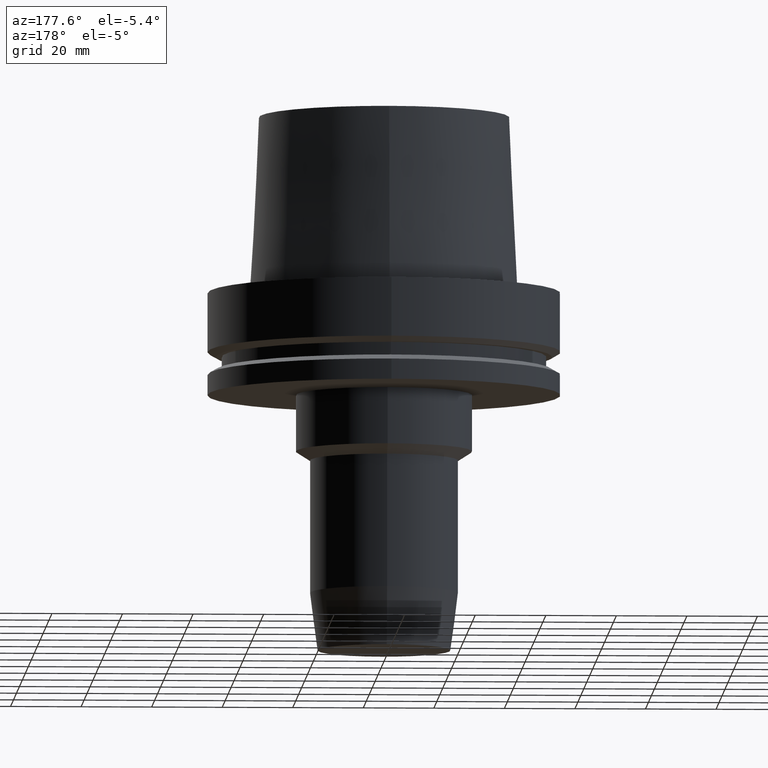
[diagram: clean part render]
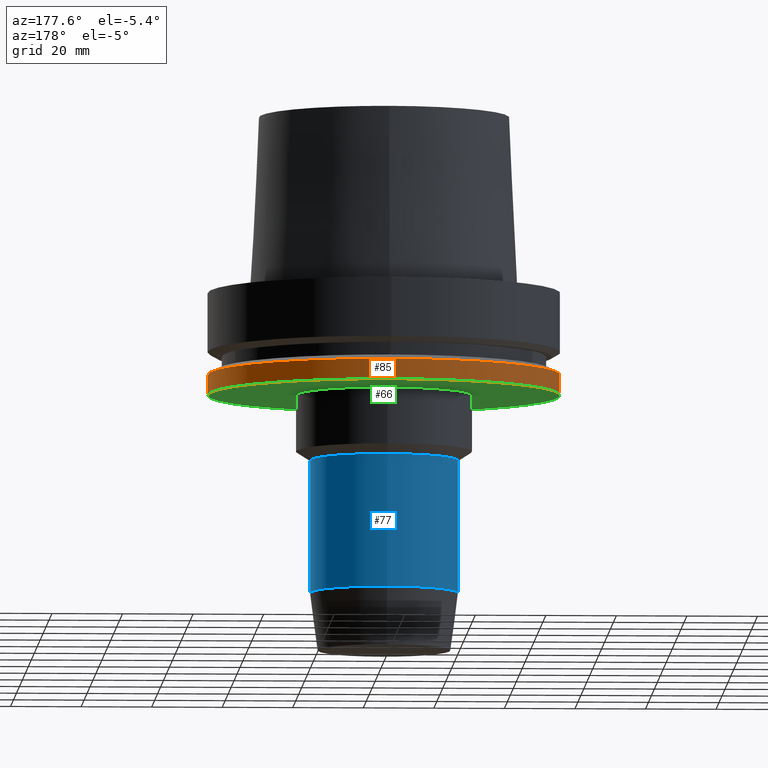
[diagram: same view with three faces highlighted in distinct colors, each labeled with its STEP entity id]
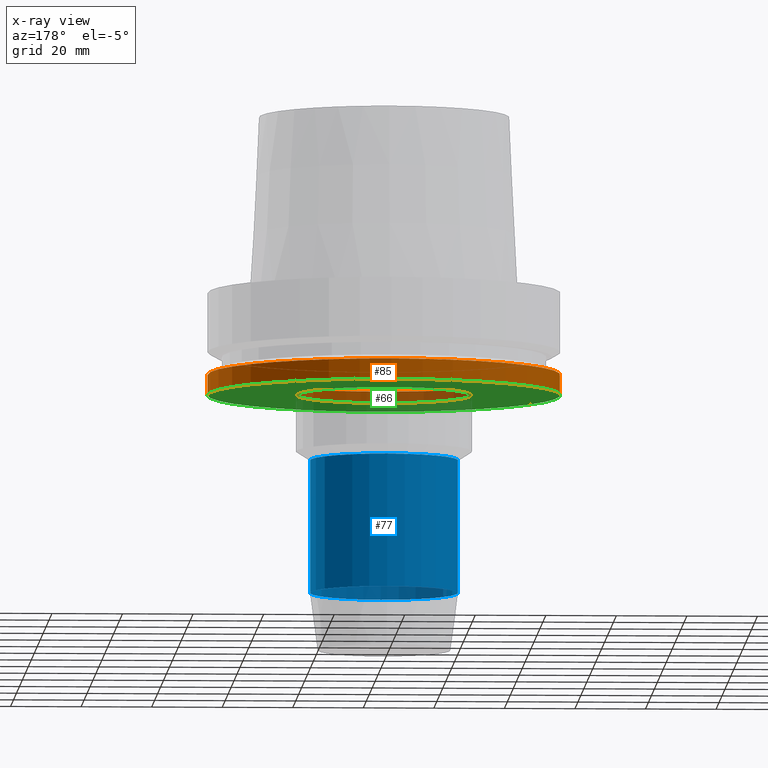
[diagram: x-ray of the same camera — body ghosted, the three highlighted faces saturated]
A machine part, auxiliary view with three faces highlighted in distinct colors.
The next image is the same camera in x-ray (body ghosted, the three faces saturated) — at least one of them is partly hidden behind the body in this view.
Their STEP definitions:

[orange] entity #85 — the highlighted cylindrical surface (bore or boss wall) has radius 50 mm, axis along (0, 0, -1).
#79=EDGE_CURVE('Unnamed[1]',#189,#189,#190,.T.);
#85=ADVANCED_FACE('Unnamed[1]',(#198,#199),#200,.T.);
#121=EDGE_CURVE('Unnamed[1]',#255,#255,#256,.T.);
#189=VERTEX_POINT('',#329);
#190=CIRCLE('',#330,50.0);
#198=FACE_BOUND('',#340,.T.);
#199=FACE_BOUND('',#341,.T.);
#200=CYLINDRICAL_SURFACE('',#342,50.0);
#255=VERTEX_POINT('',#412);
#256=CIRCLE('',#413,50.0);
#329=CARTESIAN_POINT('',(1.42350465615161E-015,50.0,-23.24759526));
#330=AXIS2_PLACEMENT_3D('',#482,#483,#484);
#340=EDGE_LOOP('',(#492));
#341=EDGE_LOOP('',(#493));
#342=AXIS2_PLACEMENT_3D('',#494,#495,#496);
#412=CARTESIAN_POINT('',(1.77573785876366E-015,50.0,-29.0));
#413=AXIS2_PLACEMENT_3D('',#556,#557,#558);
#482=CARTESIAN_POINT('',(1.42350465615161E-015,2.84700931230322E-015,-23.24759526));
#483=DIRECTION('',(6.12323399573677E-017,1.22464679914735E-016,-1.0));
#484=DIRECTION('',(-1.23259516440783E-032,1.0,1.22464679914735E-016));
#492=ORIENTED_EDGE('',*,*,#121,.F.);
#493=ORIENTED_EDGE('',*,*,#79,.T.);
#494=CARTESIAN_POINT('',(1.59962125745764E-015,3.19924251491527E-015,-26.12379763));
#495=DIRECTION('',(6.12323399573677E-017,1.22464679914735E-016,-1.0));
#496=DIRECTION('',(-1.23259516440783E-032,1.0,1.22464679914735E-016));
#556=CARTESIAN_POINT('',(1.77573785876366E-015,3.55147571752733E-015,-29.0));
#557=DIRECTION('',(6.12323399573677E-017,1.22464679914735E-016,-1.0));
#558=DIRECTION('',(-1.23259516440783E-032,1.0,1.22464679914735E-016));

[blue] entity #77 — the highlighted cylindrical surface (bore or boss wall) has radius 21 mm, axis along (0, 0, -1).
#77=ADVANCED_FACE('Unnamed[1]',(#185,#186),#187,.T.);
#89=EDGE_CURVE('Unnamed[1]',#205,#205,#206,.T.);
#128=EDGE_CURVE('Unnamed[1]',#265,#265,#266,.T.);
#185=FACE_BOUND('',#324,.T.);
#186=FACE_BOUND('',#325,.T.);
#187=CYLINDRICAL_SURFACE('',#326,20.9999999999996);
#205=VERTEX_POINT('',#349);
#206=CIRCLE('',#350,21.0000000000001);
#265=VERTEX_POINT('',#425);
#266=CIRCLE('',#426,20.9999999999991);
#324=EDGE_LOOP('',(#477));
#325=EDGE_LOOP('',(#478));
#326=AXIS2_PLACEMENT_3D('',#479,#480,#481);
#349=CARTESIAN_POINT('',(2.91230517073421E-015,21.0000000000001,-47.5615528128088));
#350=AXIS2_PLACEMENT_3D('',#500,#501,#502);
#425=CARTESIAN_POINT('',(5.21975081966579E-015,20.9999999999991,-85.2449999999997));
#426=AXIS2_PLACEMENT_3D('',#567,#568,#569);
#477=ORIENTED_EDGE('',*,*,#128,.F.);
#478=ORIENTED_EDGE('',*,*,#89,.T.);
#479=CARTESIAN_POINT('',(4.0660279952E-015,8.13205599039999E-015,-66.4032764064043));
#480=DIRECTION('',(6.12323399573677E-017,1.22464679914735E-016,-1.0));
#481=DIRECTION('',(-1.23259516440783E-032,1.0,1.22464679914735E-016));
#500=CARTESIAN_POINT('',(2.91230517073421E-015,5.82461034146841E-015,-47.5615528128088));
#501=DIRECTION('',(6.12323399573677E-017,1.22464679914735E-016,-1.0));
#502=DIRECTION('',(-1.23259516440783E-032,1.0,1.22464679914735E-016));
#567=CARTESIAN_POINT('',(5.21975081966579E-015,1.04395016393316E-014,-85.2449999999997));
#568=DIRECTION('',(6.12323399573677E-017,1.22464679914735E-016,-1.0));
#569=DIRECTION('',(-1.23259516440783E-032,1.0,1.22464679914735E-016));

[green] entity #66 — the highlighted planar face has unit normal (0, 0, -1).
#66=ADVANCED_FACE('Unnamed[1]',(#169,#170),#171,.T.);
#121=EDGE_CURVE('Unnamed[1]',#255,#255,#256,.T.);
#132=EDGE_CURVE('Unnamed[1]',#271,#271,#272,.T.);
#169=FACE_BOUND('',#305,.T.);
#170=FACE_OUTER_BOUND('',#306,.T.);
#171=PLANE('',#307);
#255=VERTEX_POINT('',#412);
#256=CIRCLE('',#413,50.0);
#271=VERTEX_POINT('',#433);
#272=CIRCLE('',#434,25.0000000000002);
#305=EDGE_LOOP('',(#461));
#306=EDGE_LOOP('',(#462));
#307=AXIS2_PLACEMENT_3D('',#463,#464,#465);
#412=CARTESIAN_POINT('',(1.77573785876366E-015,50.0,-29.0));
#413=AXIS2_PLACEMENT_3D('',#556,#557,#558);
#433=CARTESIAN_POINT('',(1.77573785876366E-015,25.0000000000002,-29.0));
#434=AXIS2_PLACEMENT_3D('',#573,#574,#575);
#461=ORIENTED_EDGE('',*,*,#132,.F.);
#462=ORIENTED_EDGE('',*,*,#121,.T.);
#463=CARTESIAN_POINT('',(1.77573785876366E-015,37.5000000000001,-29.0));
#464=DIRECTION('',(6.12323399573677E-017,1.22464679914735E-016,-1.0));
#465=DIRECTION('',(-1.23259516440783E-032,1.0,1.22464679914735E-016));
#556=CARTESIAN_POINT('',(1.77573785876366E-015,3.55147571752733E-015,-29.0));
#557=DIRECTION('',(6.12323399573677E-017,1.22464679914735E-016,-1.0));
#558=DIRECTION('',(-1.23259516440783E-032,1.0,1.22464679914735E-016));
#573=CARTESIAN_POINT('',(1.77573785876366E-015,3.55147571752733E-015,-29.0));
#574=DIRECTION('',(6.12323399573677E-017,1.22464679914735E-016,-1.0));
#575=DIRECTION('',(-1.23259516440783E-032,1.0,1.22464679914735E-016));